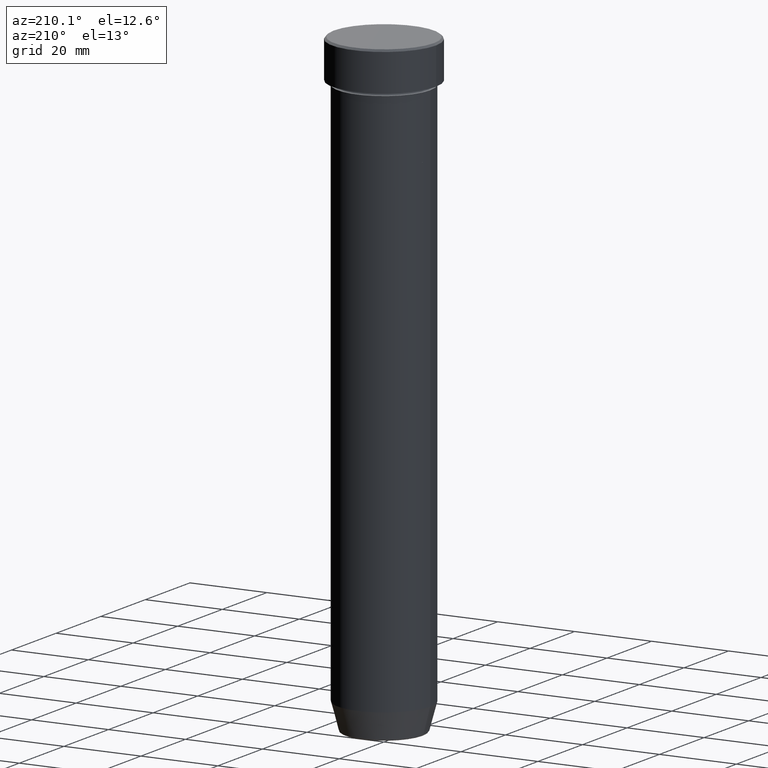
[diagram: clean part render]
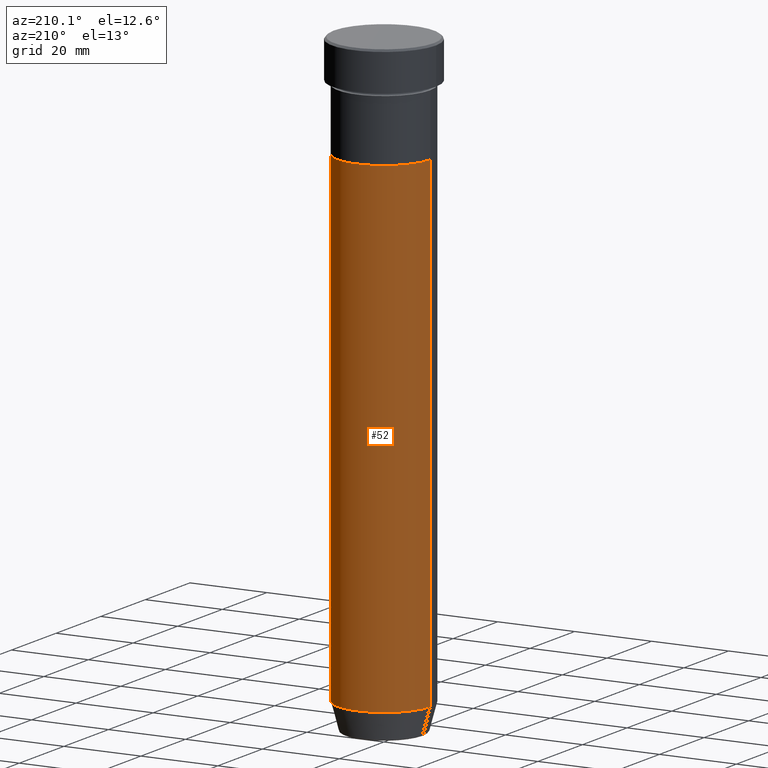
[diagram: same view with one face highlighted and labeled with its STEP entity id]
A machine part, auxiliary view. The second image highlights one B-rep face of the part: STEP entity #52.
In plain terms, the highlighted cylindrical surface (partial cylindrical patch) has radius 12 mm, axis along (-0, -0, 1).
Its self-contained STEP definition (entity closure, byte-faithful):
#11 = CARTESIAN_POINT ( 'NONE',  ( 0.000000000000000000, 0.000000000000000000, 0.000000000000000000 ) ) ;
#52 = ADVANCED_FACE ( 'NONE', ( #561 ), #265, .T. ) ;
#55 = EDGE_CURVE ( 'NONE', #412, #227, #67, .T. ) ;
#60 = VECTOR ( 'NONE', #343, 1000.000000000000000 ) ;
#63 = CARTESIAN_POINT ( 'NONE',  ( 12.00000000000000000, 0.000000000000000000, -27.00000000000000000 ) ) ;
#67 = CIRCLE ( 'NONE', #371, 12.00000000000000000 ) ;
#74 = LINE ( 'NONE', #433, #60 ) ;
#81 = CARTESIAN_POINT ( 'NONE',  ( 12.00000000000000000, 0.000000000000000000, -152.9999999999999716 ) ) ;
#115 = VERTEX_POINT ( 'NONE', #63 ) ;
#135 = EDGE_CURVE ( 'NONE', #227, #473, #339, .T. ) ;
#150 = AXIS2_PLACEMENT_3D ( 'NONE', #11, #201, #564 ) ;
#158 = CARTESIAN_POINT ( 'NONE',  ( 0.000000000000000000, 0.000000000000000000, -152.9999999999999716 ) ) ;
#201 = DIRECTION ( 'NONE',  ( -0.000000000000000000, -0.000000000000000000, 1.000000000000000000 ) ) ;
#202 = CARTESIAN_POINT ( 'NONE',  ( -12.00000000000000000, 1.469576158976823947E-15, -152.9999999999999716 ) ) ;
#213 = CARTESIAN_POINT ( 'NONE',  ( 0.000000000000000000, 0.000000000000000000, -27.00000000000000000 ) ) ;
#214 = ORIENTED_EDGE ( 'NONE', *, *, #456, .F. ) ;
#227 = VERTEX_POINT ( 'NONE', #202 ) ;
#241 = ORIENTED_EDGE ( 'NONE', *, *, #55, .T. ) ;
#265 = CYLINDRICAL_SURFACE ( 'NONE', #150, 12.00000000000000000 ) ;
#297 = CARTESIAN_POINT ( 'NONE',  ( -12.00000000000000000, 1.469576158976823947E-15, 0.000000000000000000 ) ) ;
#339 = LINE ( 'NONE', #297, #548 ) ;
#343 = DIRECTION ( 'NONE',  ( -0.000000000000000000, -0.000000000000000000, 1.000000000000000000 ) ) ;
#364 = DIRECTION ( 'NONE',  ( 1.000000000000000000, 0.000000000000000000, 0.000000000000000000 ) ) ;
#371 = AXIS2_PLACEMENT_3D ( 'NONE', #158, #523, #364 ) ;
#389 = DIRECTION ( 'NONE',  ( -0.000000000000000000, -0.000000000000000000, 1.000000000000000000 ) ) ;
#406 = CIRCLE ( 'NONE', #424, 12.00000000000000000 ) ;
#407 = CARTESIAN_POINT ( 'NONE',  ( -12.00000000000000000, 1.469576158976823947E-15, -27.00000000000000000 ) ) ;
#412 = VERTEX_POINT ( 'NONE', #81 ) ;
#424 = AXIS2_PLACEMENT_3D ( 'NONE', #213, #389, #575 ) ;
#433 = CARTESIAN_POINT ( 'NONE',  ( 12.00000000000000000, 0.000000000000000000, 0.000000000000000000 ) ) ;
#456 = EDGE_CURVE ( 'NONE', #412, #115, #74, .T. ) ;
#465 = EDGE_CURVE ( 'NONE', #115, #473, #406, .T. ) ;
#473 = VERTEX_POINT ( 'NONE', #407 ) ;
#523 = DIRECTION ( 'NONE',  ( -0.000000000000000000, -0.000000000000000000, 1.000000000000000000 ) ) ;
#532 = ORIENTED_EDGE ( 'NONE', *, *, #135, .T. ) ;
#535 = EDGE_LOOP ( 'NONE', ( #241, #532, #588, #214 ) ) ;
#548 = VECTOR ( 'NONE', #574, 1000.000000000000000 ) ;
#561 = FACE_OUTER_BOUND ( 'NONE', #535, .T. ) ;
#564 = DIRECTION ( 'NONE',  ( 1.000000000000000000, 0.000000000000000000, 0.000000000000000000 ) ) ;
#574 = DIRECTION ( 'NONE',  ( -0.000000000000000000, -0.000000000000000000, 1.000000000000000000 ) ) ;
#575 = DIRECTION ( 'NONE',  ( 1.000000000000000000, 0.000000000000000000, 0.000000000000000000 ) ) ;
#588 = ORIENTED_EDGE ( 'NONE', *, *, #465, .F. ) ;